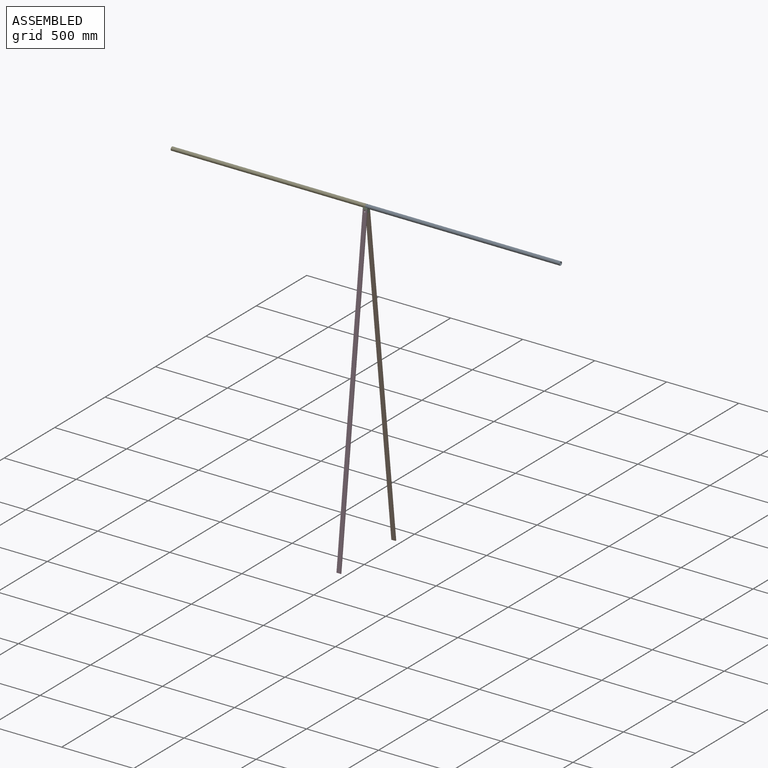
[diagram: assembled view]
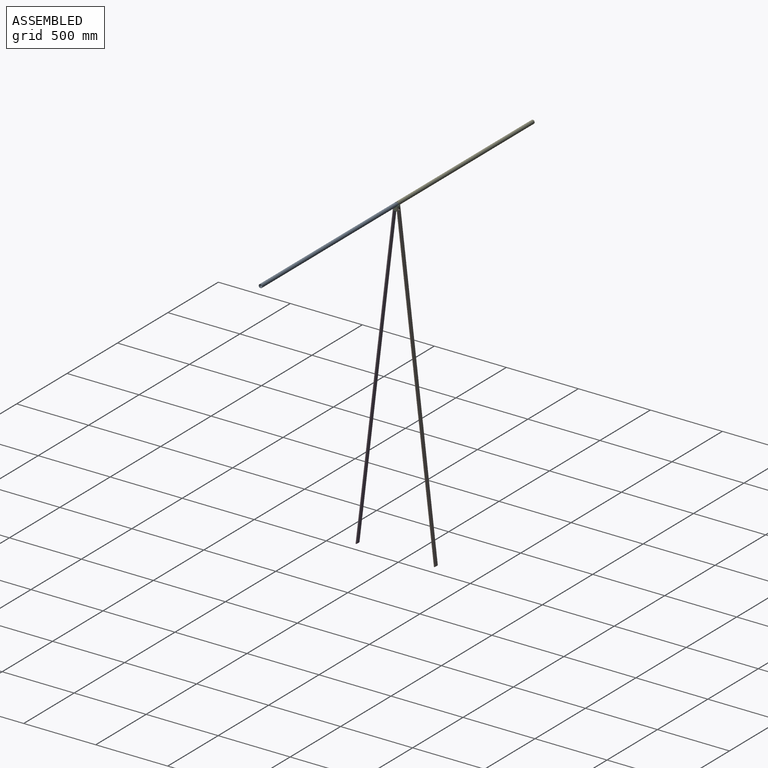
[diagram: assembled view, second angle]
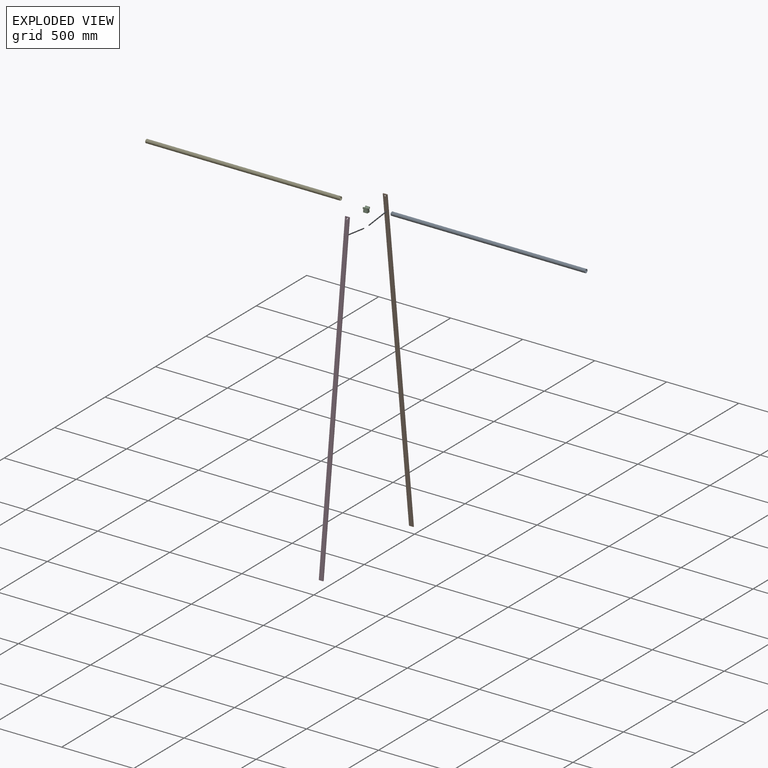
[diagram: exploded view]
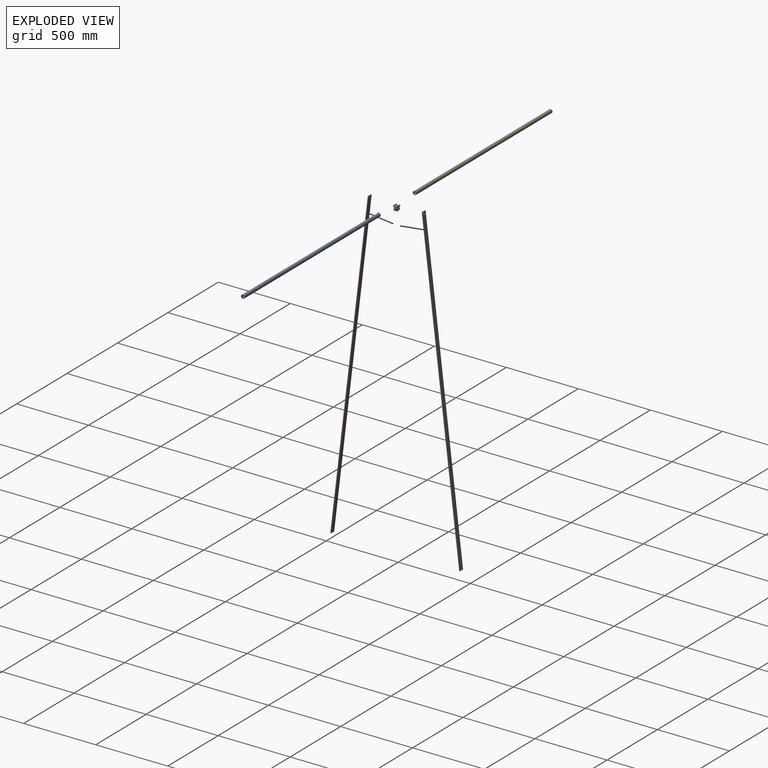
[diagram: exploded view, second angle]
ASSEMBLY  parts=5 mates=4
PART A: 8 faces, bbox 1350x25.4x25.4 mm
  f0: cylinder r=10.7mm len=1349.5mm, axis (-1,0,0), area 90649mm2, adj f2,f4,f5,f6
  f1: cylinder r=12.7mm len=1349.5mm, axis (-1,0,0), area 107607.5mm2, adj f2,f4,f5,f7
  f2: plane 25.4x25.4mm, normal (1,0,0), area 147mm2, adj f0,f1
  f3: plane 24.4x24.4mm, normal (-1,0,0), area 73.5mm2, adj f6,f7
  f4: cylinder r=3.5mm len=7mm, axis (0,0,1), area 45mm2, adj f0,f1
  f5: cylinder r=3.5mm len=7mm, axis (0,0,-1), area 45mm2, adj f0,f1
  f6: cone r=11.2mm half-angle=45deg, axis (-1,0,0), area 48.6mm2, adj f0,f3
  f7: cone r=12.7mm half-angle=45deg, axis (1,0,0), area 55.3mm2, adj f1,f3
PART B: 10 faces, bbox 30x266.3x2184.9 mm
  f0: plane 2184.17x260.32mm, normal (0,-0.99,0.12), area 65729.9mm2, adj f1,f2,f4,f5,f6,f8
  f1: plane 2184.88x266.28mm, normal (1,0,0), area 13197.8mm2, adj f0,f2,f3,f4
  f2: plane 30x5.96mm, normal (0,-0.12,-0.99), area 180mm2, adj f0,f1,f3,f5
  f3: plane 2184.17x260.32mm, normal (0,0.99,-0.12), area 65952.2mm2, adj f1,f2,f4,f5,f7
  f4: plane 30x5.96mm, normal (0,0.12,0.99), area 180mm2, adj f0,f1,f3,f5
  f5: plane 2184.88x266.28mm, normal (-1,0,0), area 13197.8mm2, adj f0,f2,f3,f4
  f6: cone r=3.4mm half-angle=45deg, axis (0,-1,0), area 281.8mm2, adj f0,f7,f9
  f7: cylinder r=3.4mm len=6.8mm, axis (0,-1,0), area 10.2mm2, adj f3,f6
  f8: cylinder r=9.03mm len=18.06mm, axis (0,1,0), area 23.4mm2, adj f0,f9
  f9: plane 18.06x10.15mm, normal (0,-1,0), area 21.5mm2, adj f6,f8
PART C: 17 faces, bbox 30x29.4x33.4 mm
  f0: cylinder r=12.7mm len=30mm, axis (-1,0,0), area 830.9mm2, adj f5,f6,f7,f12,f14,f16
  f1: plane 30x10.26mm, normal (0,-0.99,0.12), area 309.9mm2, adj f2,f5,f6,f7
  f2: plane 30x5.96mm, normal (0,-0.12,-0.99), area 180mm2, adj f1,f3,f5,f6
  f3: plane 30x22.12mm, normal (0,-0.99,0.12), area 631.6mm2, adj f2,f4,f5,f6,f8
  f4: plane 30x22.71mm, normal (0,0,-1), area 681.3mm2, adj f3,f5,f6,f11
  f5: plane 33.38x29.35mm, normal (1,0,0), area 633.3mm2, adj f0,f1,f2,f3,f4,f7,f9,f10
  f6: plane 33.38x29.35mm, normal (-1,0,0), area 633.3mm2, adj f0,f1,f2,f3,f4,f7,f9,f10
  f7: plane 30x1.9mm, normal (0,-0.15,0.99), area 57.8mm2, adj f0,f1,f5,f6
  f8: cylinder r=3.4mm len=20.75mm, axis (0,1,0), area 425.6mm2, adj f3,f11
  f9: plane 30x10.26mm, normal (0,0.99,0.12), area 309.9mm2, adj f5,f6,f10,f12
  f10: plane 30x5.96mm, normal (0,0.12,-0.99), area 180mm2, adj f5,f6,f9,f11
  f11: plane 30x22.12mm, normal (0,0.99,0.12), area 631.6mm2, adj f4,f5,f6,f8,f10
  f12: plane 30x1.9mm, normal (0,0.15,0.99), area 57.8mm2, adj f0,f5,f6,f9
  f13: cone r=0mm half-angle=59deg, axis (0,0,1), area 22.9mm2, adj f14
  f14: cylinder r=2.5mm len=11.25mm, axis (0,0,1), area 174.7mm2, adj f0,f13
  f15: cone r=0mm half-angle=59deg, axis (0,0,1), area 22.9mm2, adj f16
  f16: cylinder r=2.5mm len=11.25mm, axis (0,0,1), area 174.7mm2, adj f0,f15
PART D: same geometry as B
PART E: same geometry as A
PLACE A t=(15,0,0)mm
PLACE B rot(axis=(0,0,1),180deg) t=(30,0,0)mm
PLACE C at identity fixed
PLACE D at identity
PLACE E rot(axis=(0,0,1),180deg) t=(15,0,0)mm
MATE fastened C.f11 <-> B.f3  axis (0,0.99,0.12) through (15,9.96,-26.97)mm
MATE fastened E.f1 <-> C.f0  axis (1,0,0) through (15,0,0)mm
MATE fastened D.f3 <-> C.f3  axis (0,0.99,-0.12) through (15,-9.96,-26.97)mm
MATE fastened C.f0 <-> A.f1  axis (1,0,0) through (0,0,0)mm
